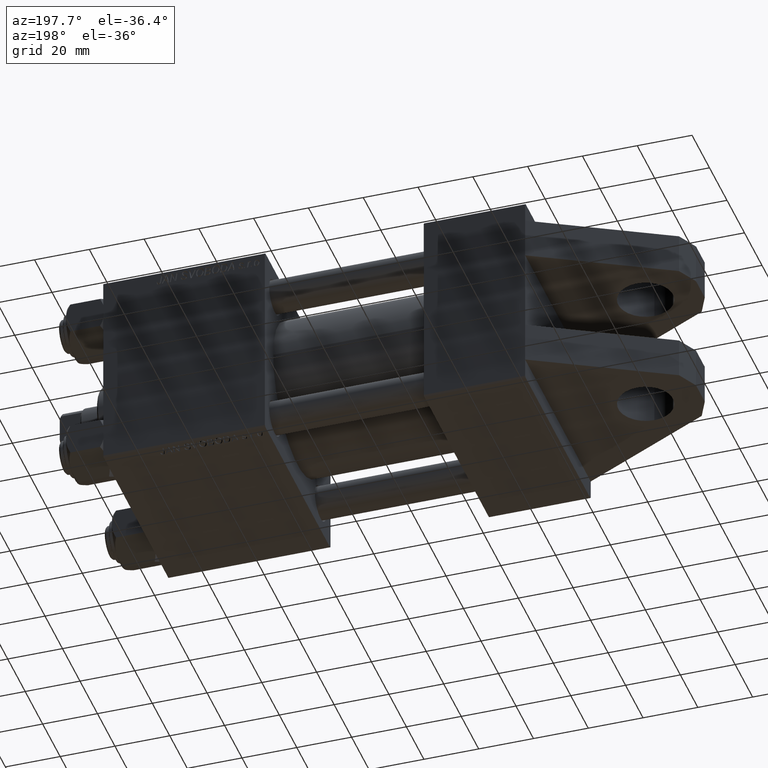
[diagram: clean part render]
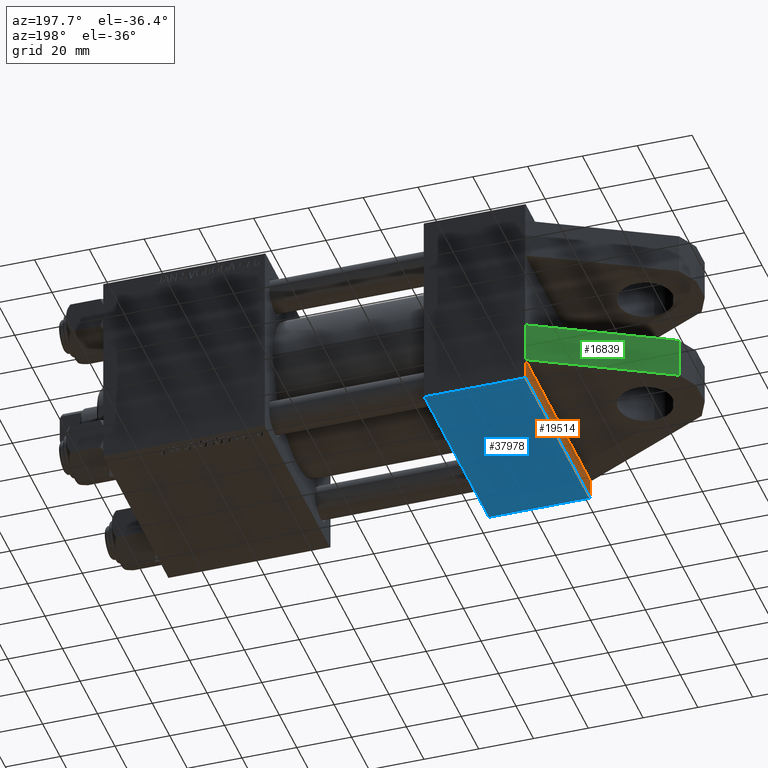
[diagram: same view with three faces highlighted in distinct colors, each labeled with its STEP entity id]
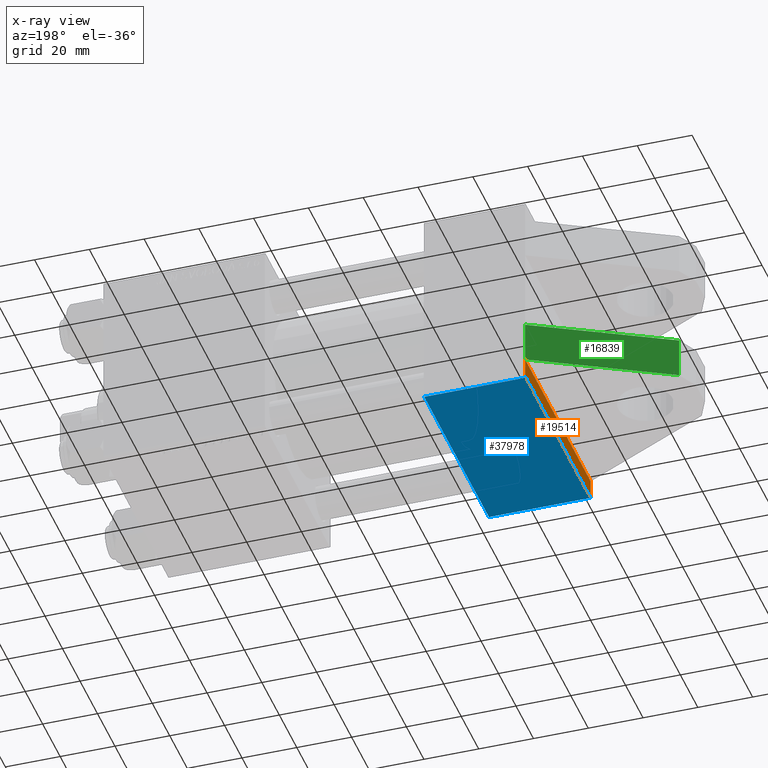
[diagram: x-ray of the same camera — body ghosted, the three highlighted faces saturated]
A machine part, auxiliary view with three faces highlighted in distinct colors.
The next image is the same camera in x-ray (body ghosted, the three faces saturated) — at least one of them is partly hidden behind the body in this view.
Their STEP definitions:

[orange] entity #19514 — the highlighted planar face has unit normal (-1, 0, -0).
#899 = LINE ( 'NONE', #27791, #41674 ) ;
#1309 = VERTEX_POINT ( 'NONE', #49734 ) ;
#2916 = ORIENTED_EDGE ( 'NONE', *, *, #49306, .T. ) ;
#5567 = CARTESIAN_POINT ( 'NONE',  ( 0.000000000000000000, 30.00000000000000000, 37.49999999999999289 ) ) ;
#6485 = ORIENTED_EDGE ( 'NONE', *, *, #37963, .T. ) ;
#6589 = DIRECTION ( 'NONE',  ( 0.000000000000000000, 0.7071067811865474617, -0.7071067811865474617 ) ) ;
#6914 = VECTOR ( 'NONE', #20641, 1000.000000000000000 ) ;
#7653 = LINE ( 'NONE', #30514, #14354 ) ;
#7949 = CARTESIAN_POINT ( 'NONE',  ( 0.000000000000000000, 30.00000000000000000, 37.50000000000000000 ) ) ;
#8197 = VERTEX_POINT ( 'NONE', #48727 ) ;
#8947 = DIRECTION ( 'NONE',  ( 0.000000000000000000, -1.000000000000000000, -9.251858538542972814E-17 ) ) ;
#9839 = ORIENTED_EDGE ( 'NONE', *, *, #13969, .T. ) ;
#11255 = LINE ( 'NONE', #30339, #15893 ) ;
#13969 = EDGE_CURVE ( 'NONE', #37576, #44594, #899, .T. ) ;
#14354 = VECTOR ( 'NONE', #38068, 1000.000000000000000 ) ;
#15893 = VECTOR ( 'NONE', #37889, 1000.000000000000000 ) ;
#17067 = PLANE ( 'NONE',  #23254 ) ;
#19514 = ADVANCED_FACE ( 'NONE', ( #40192 ), #17067, .T. ) ;
#19651 = VECTOR ( 'NONE', #27610, 1000.000000000000114 ) ;
#20560 = EDGE_LOOP ( 'NONE', ( #33475, #31826, #37313, #2916, #6485, #9839 ) ) ;
#20641 = DIRECTION ( 'NONE',  ( 0.000000000000000000, 0.000000000000000000, -1.000000000000000000 ) ) ;
#22668 = LINE ( 'NONE', #29458, #32584 ) ;
#22851 = LINE ( 'NONE', #38180, #19651 ) ;
#23254 = AXIS2_PLACEMENT_3D ( 'NONE', #48225, #29107, #32641 ) ;
#27610 = DIRECTION ( 'NONE',  ( -0.000000000000000000, -0.7071067811865474617, -0.7071067811865474617 ) ) ;
#27791 = CARTESIAN_POINT ( 'NONE',  ( 0.000000000000000000, 37.49999999999999289, -37.50000000000000000 ) ) ;
#28921 = LINE ( 'NONE', #5567, #6914 ) ;
#29107 = DIRECTION ( 'NONE',  ( -1.000000000000000000, 0.000000000000000000, -0.000000000000000000 ) ) ;
#29458 = CARTESIAN_POINT ( 'NONE',  ( 0.000000000000000000, 37.24999999999999289, 37.24999999999999289 ) ) ;
#30339 = CARTESIAN_POINT ( 'NONE',  ( 0.000000000000000000, 37.49999999999999289, 37.50000000000000000 ) ) ;
#30514 = CARTESIAN_POINT ( 'NONE',  ( 0.000000000000000000, 37.49999999999999289, 37.50000000000000000 ) ) ;
#31324 = VERTEX_POINT ( 'NONE', #48966 ) ;
#31826 = ORIENTED_EDGE ( 'NONE', *, *, #46551, .F. ) ;
#32584 = VECTOR ( 'NONE', #6589, 1000.000000000000114 ) ;
#32641 = DIRECTION ( 'NONE',  ( -0.000000000000000000, 0.000000000000000000, 1.000000000000000000 ) ) ;
#33475 = ORIENTED_EDGE ( 'NONE', *, *, #39762, .F. ) ;
#37313 = ORIENTED_EDGE ( 'NONE', *, *, #39614, .T. ) ;
#37576 = VERTEX_POINT ( 'NONE', #46280 ) ;
#37889 = DIRECTION ( 'NONE',  ( 0.000000000000000000, -1.000000000000000000, -9.251858538542971581E-17 ) ) ;
#37963 = EDGE_CURVE ( 'NONE', #8197, #37576, #22851, .T. ) ;
#38068 = DIRECTION ( 'NONE',  ( 0.000000000000000000, 0.000000000000000000, -1.000000000000000000 ) ) ;
#38180 = CARTESIAN_POINT ( 'NONE',  ( 0.000000000000000000, 37.24999999999998579, -37.24999999999998579 ) ) ;
#39614 = EDGE_CURVE ( 'NONE', #1309, #31324, #22668, .T. ) ;
#39762 = EDGE_CURVE ( 'NONE', #47171, #44594, #28921, .T. ) ;
#40192 = FACE_OUTER_BOUND ( 'NONE', #20560, .T. ) ;
#41674 = VECTOR ( 'NONE', #8947, 1000.000000000000000 ) ;
#44594 = VERTEX_POINT ( 'NONE', #46540 ) ;
#46280 = CARTESIAN_POINT ( 'NONE',  ( 0.000000000000000000, 36.99999999999997868, -37.50000000000000000 ) ) ;
#46540 = CARTESIAN_POINT ( 'NONE',  ( 0.000000000000000000, 30.00000000000000000, -37.50000000000000711 ) ) ;
#46551 = EDGE_CURVE ( 'NONE', #1309, #47171, #11255, .T. ) ;
#47171 = VERTEX_POINT ( 'NONE', #7949 ) ;
#48225 = CARTESIAN_POINT ( 'NONE',  ( 0.000000000000000000, 0.000000000000000000, 0.000000000000000000 ) ) ;
#48727 = CARTESIAN_POINT ( 'NONE',  ( 0.000000000000000000, 37.49999999999999289, -36.99999999999998579 ) ) ;
#48966 = CARTESIAN_POINT ( 'NONE',  ( 0.000000000000000000, 37.49999999999999289, 37.00000000000000000 ) ) ;
#49306 = EDGE_CURVE ( 'NONE', #31324, #8197, #7653, .T. ) ;
#49734 = CARTESIAN_POINT ( 'NONE',  ( 0.000000000000000000, 36.99999999999999289, 37.50000000000000000 ) ) ;

[blue] entity #37978 — the highlighted planar face has unit normal (0, 0, -1).
#1715 = FACE_OUTER_BOUND ( 'NONE', #4452, .T. ) ;
#3768 = DIRECTION ( 'NONE',  ( 0.000000000000000000, 0.000000000000000000, -1.000000000000000000 ) ) ;
#4452 = EDGE_LOOP ( 'NONE', ( #35136, #9929, #33373, #25061 ) ) ;
#7653 = LINE ( 'NONE', #30514, #14354 ) ;
#8197 = VERTEX_POINT ( 'NONE', #48727 ) ;
#9929 = ORIENTED_EDGE ( 'NONE', *, *, #41992, .T. ) ;
#13688 = CARTESIAN_POINT ( 'NONE',  ( 37.00000000000000000, 37.49999999999999289, -36.99999999999998579 ) ) ;
#13934 = LINE ( 'NONE', #13688, #24581 ) ;
#14354 = VECTOR ( 'NONE', #38068, 1000.000000000000000 ) ;
#14776 = CARTESIAN_POINT ( 'NONE',  ( 37.00000000000000000, 37.49999999999999289, 37.00000000000000000 ) ) ;
#16808 = PLANE ( 'NONE',  #32509 ) ;
#17205 = DIRECTION ( 'NONE',  ( -1.000000000000000000, 0.000000000000000000, 0.000000000000000000 ) ) ;
#20462 = CARTESIAN_POINT ( 'NONE',  ( 37.00000000000000000, 37.49999999999999289, 37.00000000000000000 ) ) ;
#21212 = VERTEX_POINT ( 'NONE', #46713 ) ;
#22631 = CARTESIAN_POINT ( 'NONE',  ( 37.00000000000000000, 37.49999999999999289, 37.50000000000000000 ) ) ;
#23430 = VECTOR ( 'NONE', #24965, 1000.000000000000000 ) ;
#24479 = LINE ( 'NONE', #20462, #23430 ) ;
#24581 = VECTOR ( 'NONE', #17205, 1000.000000000000000 ) ;
#24629 = EDGE_CURVE ( 'NONE', #31324, #45731, #24479, .T. ) ;
#24965 = DIRECTION ( 'NONE',  ( 1.000000000000000000, 0.000000000000000000, 0.000000000000000000 ) ) ;
#25061 = ORIENTED_EDGE ( 'NONE', *, *, #24629, .T. ) ;
#27392 = LINE ( 'NONE', #22631, #29129 ) ;
#29129 = VECTOR ( 'NONE', #3768, 1000.000000000000000 ) ;
#30514 = CARTESIAN_POINT ( 'NONE',  ( 0.000000000000000000, 37.49999999999999289, 37.50000000000000000 ) ) ;
#31324 = VERTEX_POINT ( 'NONE', #48966 ) ;
#31632 = CARTESIAN_POINT ( 'NONE',  ( 37.00000000000000000, 37.49999999999999289, 37.50000000000000000 ) ) ;
#32067 = EDGE_CURVE ( 'NONE', #45731, #21212, #27392, .T. ) ;
#32509 = AXIS2_PLACEMENT_3D ( 'NONE', #31632, #40181, #36158 ) ;
#33373 = ORIENTED_EDGE ( 'NONE', *, *, #49306, .F. ) ;
#35136 = ORIENTED_EDGE ( 'NONE', *, *, #32067, .T. ) ;
#36158 = DIRECTION ( 'NONE',  ( 0.000000000000000000, -0.000000000000000000, 1.000000000000000000 ) ) ;
#37978 = ADVANCED_FACE ( 'NONE', ( #1715 ), #16808, .T. ) ;
#38068 = DIRECTION ( 'NONE',  ( 0.000000000000000000, 0.000000000000000000, -1.000000000000000000 ) ) ;
#40181 = DIRECTION ( 'NONE',  ( -0.000000000000000000, 1.000000000000000000, 0.000000000000000000 ) ) ;
#41992 = EDGE_CURVE ( 'NONE', #21212, #8197, #13934, .T. ) ;
#45731 = VERTEX_POINT ( 'NONE', #14776 ) ;
#46713 = CARTESIAN_POINT ( 'NONE',  ( 37.00000000000000000, 37.49999999999999289, -36.99999999999998579 ) ) ;
#48727 = CARTESIAN_POINT ( 'NONE',  ( 0.000000000000000000, 37.49999999999999289, -36.99999999999998579 ) ) ;
#48966 = CARTESIAN_POINT ( 'NONE',  ( 0.000000000000000000, 37.49999999999999289, 37.00000000000000000 ) ) ;
#49306 = EDGE_CURVE ( 'NONE', #31324, #8197, #7653, .T. ) ;

[green] entity #16839 — the highlighted planar face has unit normal (0.4608, -0.8875, 0).
#4092 = DIRECTION ( 'NONE',  ( 0.4607970030660758498, 0.000000000000000000, -0.8875055616531780656 ) ) ;
#4841 = EDGE_CURVE ( 'NONE', #13175, #47171, #39979, .T. ) ;
#7949 = CARTESIAN_POINT ( 'NONE',  ( 0.000000000000000000, 30.00000000000000000, 37.50000000000000000 ) ) ;
#9225 = CARTESIAN_POINT ( 'NONE',  ( -48.15077811301358679, 15.00000000000000000, 12.49989272354909353 ) ) ;
#13175 = VERTEX_POINT ( 'NONE', #32305 ) ;
#14111 = VECTOR ( 'NONE', #31843, 1000.000000000000114 ) ;
#14509 = CARTESIAN_POINT ( 'NONE',  ( 0.000000000000000000, 15.00000000000000000, 37.50000000000000000 ) ) ;
#15420 = CARTESIAN_POINT ( 'NONE',  ( -48.15077811301358679, 30.00000000000000000, 12.49989272354909353 ) ) ;
#16831 = ORIENTED_EDGE ( 'NONE', *, *, #46987, .F. ) ;
#16839 = ADVANCED_FACE ( 'NONE', ( #42316 ), #22958, .F. ) ;
#17101 = CARTESIAN_POINT ( 'NONE',  ( -48.15077811301358679, 30.00000000000000000, 12.49989272354909353 ) ) ;
#17357 = VERTEX_POINT ( 'NONE', #14509 ) ;
#19313 = EDGE_CURVE ( 'NONE', #13175, #29263, #41480, .T. ) ;
#22958 = PLANE ( 'NONE',  #36041 ) ;
#24719 = VECTOR ( 'NONE', #36399, 1000.000000000000000 ) ;
#26622 = DIRECTION ( 'NONE',  ( -0.000000000000000000, -1.000000000000000000, -0.000000000000000000 ) ) ;
#29092 = LINE ( 'NONE', #44433, #24719 ) ;
#29263 = VERTEX_POINT ( 'NONE', #44657 ) ;
#30989 = DIRECTION ( 'NONE',  ( -0.8875055616531780656, 0.000000000000000000, -0.4607970030660758498 ) ) ;
#31843 = DIRECTION ( 'NONE',  ( 0.8875055616531780656, 0.000000000000000000, 0.4607970030660757943 ) ) ;
#32217 = ORIENTED_EDGE ( 'NONE', *, *, #4841, .F. ) ;
#32305 = CARTESIAN_POINT ( 'NONE',  ( -48.15077811301358679, 30.00000000000000000, 12.49989272354909353 ) ) ;
#32673 = DIRECTION ( 'NONE',  ( 0.8875055616531780656, 0.000000000000000000, 0.4607970030660757943 ) ) ;
#33927 = CARTESIAN_POINT ( 'NONE',  ( -48.15077811301358679, 30.00000000000000000, 12.49989272354909353 ) ) ;
#36041 = AXIS2_PLACEMENT_3D ( 'NONE', #15420, #4092, #30989 ) ;
#36399 = DIRECTION ( 'NONE',  ( -0.000000000000000000, -1.000000000000000000, -0.000000000000000000 ) ) ;
#38130 = ORIENTED_EDGE ( 'NONE', *, *, #19313, .T. ) ;
#39139 = LINE ( 'NONE', #9225, #14111 ) ;
#39979 = LINE ( 'NONE', #17101, #45264 ) ;
#41084 = EDGE_CURVE ( 'NONE', #29263, #17357, #39139, .T. ) ;
#41480 = LINE ( 'NONE', #33927, #46547 ) ;
#41600 = EDGE_LOOP ( 'NONE', ( #43082, #16831, #32217, #38130 ) ) ;
#42316 = FACE_OUTER_BOUND ( 'NONE', #41600, .T. ) ;
#43082 = ORIENTED_EDGE ( 'NONE', *, *, #41084, .T. ) ;
#44433 = CARTESIAN_POINT ( 'NONE',  ( 0.000000000000000000, 30.00000000000000000, 37.49999999999999289 ) ) ;
#44657 = CARTESIAN_POINT ( 'NONE',  ( -48.15077811301358679, 15.00000000000000000, 12.49989272354909353 ) ) ;
#45264 = VECTOR ( 'NONE', #32673, 1000.000000000000114 ) ;
#46547 = VECTOR ( 'NONE', #26622, 1000.000000000000000 ) ;
#46987 = EDGE_CURVE ( 'NONE', #47171, #17357, #29092, .T. ) ;
#47171 = VERTEX_POINT ( 'NONE', #7949 ) ;